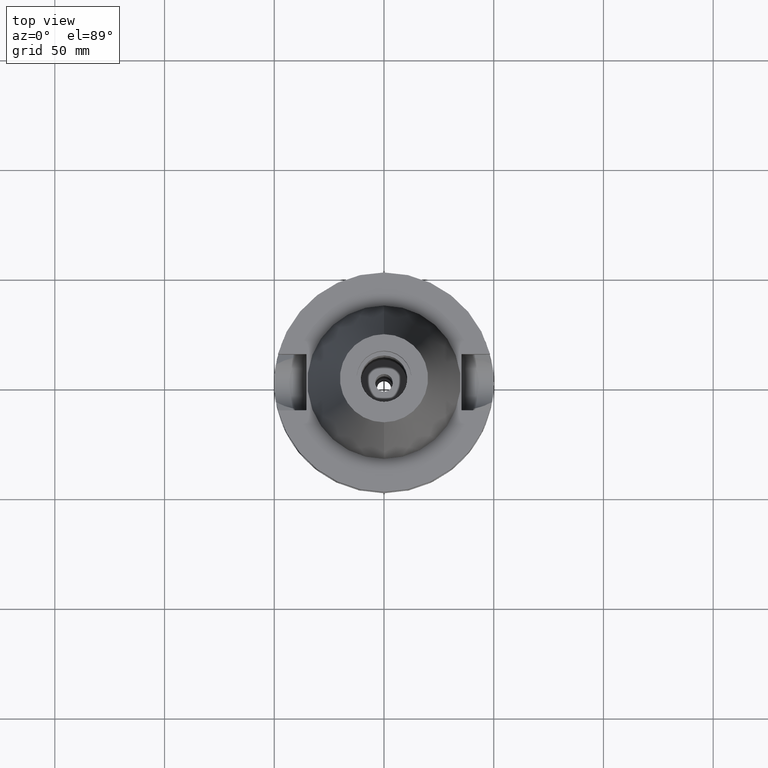
[diagram: clean part render]
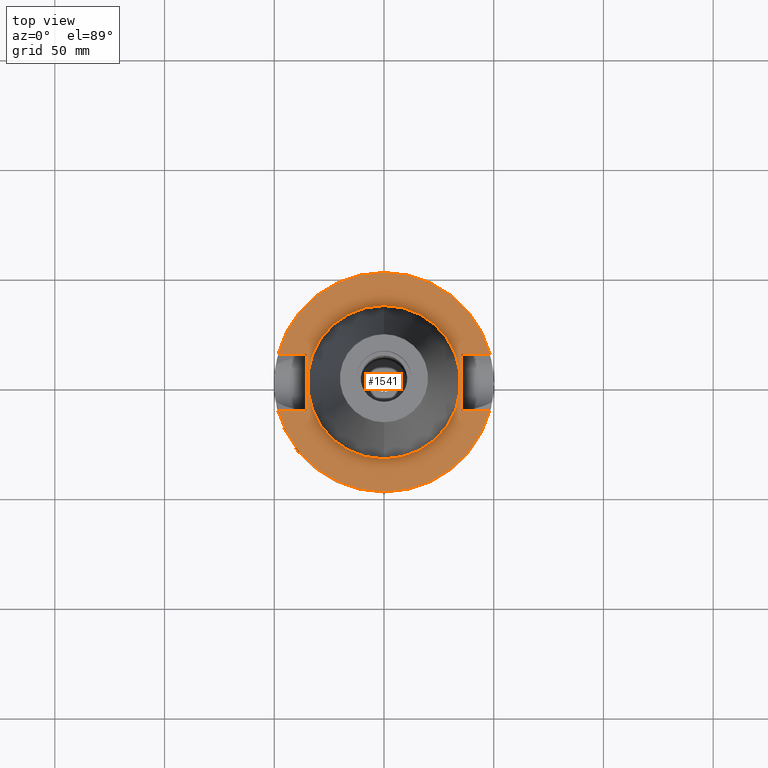
[diagram: same view with one face highlighted and labeled with its STEP entity id]
A machine part, top view. The second image highlights one B-rep face of the part: STEP entity #1541.
In plain terms, the highlighted planar face has unit normal (0, 0, -1).
Its self-contained STEP definition (entity closure, byte-faithful):
#25 = ORIENTED_EDGE ( 'NONE', *, *, #1755, .F. ) ;
#53 = CARTESIAN_POINT ( 'NONE',  ( -35.39999999999999858, -12.84999999999999964, -1.500000000000000000 ) ) ;
#65 = VERTEX_POINT ( 'NONE', #2046 ) ;
#124 = CIRCLE ( 'NONE', #2508, 50.00000000000000000 ) ;
#165 = PLANE ( 'NONE',  #1320 ) ;
#178 = FACE_BOUND ( 'NONE', #1451, .T. ) ;
#192 = CARTESIAN_POINT ( 'NONE',  ( 0.0000000000000000000, 1.206277097159999845E-14, -1.500000000000000000 ) ) ;
#227 = VERTEX_POINT ( 'NONE', #880 ) ;
#228 = DIRECTION ( 'NONE',  ( 0.0000000000000000000, -1.000000000000000000, 0.0000000000000000000 ) ) ;
#251 = ORIENTED_EDGE ( 'NONE', *, *, #391, .F. ) ;
#260 = CARTESIAN_POINT ( 'NONE',  ( 0.0000000000000000000, 34.92499999999999716, -1.500000000000000000 ) ) ;
#295 = VERTEX_POINT ( 'NONE', #2370 ) ;
#391 = EDGE_CURVE ( 'NONE', #572, #65, #2702, .T. ) ;
#393 = CIRCLE ( 'NONE', #3133, 34.92499999999999716 ) ;
#501 = CARTESIAN_POINT ( 'NONE',  ( 0.0000000000000000000, 2.652340037592999854E-14, -1.500000000000000000 ) ) ;
#548 = EDGE_CURVE ( 'NONE', #2709, #227, #2496, .T. ) ;
#572 = VERTEX_POINT ( 'NONE', #2670 ) ;
#596 = AXIS2_PLACEMENT_3D ( 'NONE', #1099, #2095, #2811 ) ;
#633 = VERTEX_POINT ( 'NONE', #260 ) ;
#641 = CARTESIAN_POINT ( 'NONE',  ( -35.39999999999999858, -12.84999999999999964, -1.500000000000000000 ) ) ;
#741 = CARTESIAN_POINT ( 'NONE',  ( 35.39999999999999858, 12.84999999999999964, -1.500000000000000000 ) ) ;
#755 = DIRECTION ( 'NONE',  ( 1.000000000000000000, 0.0000000000000000000, 0.0000000000000000000 ) ) ;
#793 = LINE ( 'NONE', #1489, #2944 ) ;
#808 = VERTEX_POINT ( 'NONE', #641 ) ;
#815 = ORIENTED_EDGE ( 'NONE', *, *, #2743, .F. ) ;
#833 = ORIENTED_EDGE ( 'NONE', *, *, #981, .F. ) ;
#865 = VECTOR ( 'NONE', #1036, 1000.000000000000000 ) ;
#871 = VECTOR ( 'NONE', #967, 1000.000000000000000 ) ;
#880 = CARTESIAN_POINT ( 'NONE',  ( 48.32057015392000210, 12.84999999999999964, -1.500000000000000000 ) ) ;
#920 = VERTEX_POINT ( 'NONE', #2355 ) ;
#967 = DIRECTION ( 'NONE',  ( -1.000000000000000000, 0.0000000000000000000, 0.0000000000000000000 ) ) ;
#981 = EDGE_CURVE ( 'NONE', #2709, #295, #2383, .T. ) ;
#983 = CARTESIAN_POINT ( 'NONE',  ( -35.39999999999999858, 12.84999999999999964, -1.500000000000000000 ) ) ;
#997 = DIRECTION ( 'NONE',  ( 1.000000000000000000, 0.0000000000000000000, 0.0000000000000000000 ) ) ;
#1006 = VERTEX_POINT ( 'NONE', #1423 ) ;
#1031 = EDGE_CURVE ( 'NONE', #295, #1432, #793, .T. ) ;
#1036 = DIRECTION ( 'NONE',  ( -1.000000000000000000, 0.0000000000000000000, 0.0000000000000000000 ) ) ;
#1099 = CARTESIAN_POINT ( 'NONE',  ( 0.0000000000000000000, 2.652340037592999854E-14, -1.500000000000000000 ) ) ;
#1134 = EDGE_CURVE ( 'NONE', #808, #920, #2279, .T. ) ;
#1161 = CARTESIAN_POINT ( 'NONE',  ( 35.39999999999999858, 12.84999999999999964, -1.500000000000000000 ) ) ;
#1235 = DIRECTION ( 'NONE',  ( 0.0000000000000000000, 1.000000000000000000, 0.0000000000000000000 ) ) ;
#1241 = CARTESIAN_POINT ( 'NONE',  ( 35.39999999999999858, 12.84999999999999964, -1.500000000000000000 ) ) ;
#1320 = AXIS2_PLACEMENT_3D ( 'NONE', #192, #2644, #228 ) ;
#1400 = ORIENTED_EDGE ( 'NONE', *, *, #2855, .F. ) ;
#1423 = CARTESIAN_POINT ( 'NONE',  ( 0.0000000000000000000, -34.92499999999999716, -1.500000000000000000 ) ) ;
#1432 = VERTEX_POINT ( 'NONE', #1675 ) ;
#1451 = EDGE_LOOP ( 'NONE', ( #2220, #25 ) ) ;
#1489 = CARTESIAN_POINT ( 'NONE',  ( 35.39999999999999858, -12.84999999999999964, -1.500000000000000000 ) ) ;
#1501 = ORIENTED_EDGE ( 'NONE', *, *, #1134, .T. ) ;
#1541 = ADVANCED_FACE ( 'NONE', ( #2453, #178 ), #165, .F. ) ;
#1543 = DIRECTION ( 'NONE',  ( 0.0000000000000000000, 1.000000000000000000, 0.0000000000000000000 ) ) ;
#1623 = DIRECTION ( 'NONE',  ( 0.0000000000000000000, -1.000000000000000000, 0.0000000000000000000 ) ) ;
#1657 = EDGE_CURVE ( 'NONE', #633, #1006, #393, .T. ) ;
#1675 = CARTESIAN_POINT ( 'NONE',  ( 48.32057015392000210, -12.84999999999999964, -1.500000000000000000 ) ) ;
#1706 = ORIENTED_EDGE ( 'NONE', *, *, #1031, .F. ) ;
#1755 = EDGE_CURVE ( 'NONE', #1006, #633, #2471, .T. ) ;
#1785 = DIRECTION ( 'NONE',  ( 0.0000000000000000000, 0.0000000000000000000, 1.000000000000000000 ) ) ;
#1858 = DIRECTION ( 'NONE',  ( 0.0000000000000000000, -1.000000000000000000, 0.0000000000000000000 ) ) ;
#1863 = VECTOR ( 'NONE', #1623, 1000.000000000000000 ) ;
#1939 = AXIS2_PLACEMENT_3D ( 'NONE', #3075, #2805, #1858 ) ;
#1940 = ORIENTED_EDGE ( 'NONE', *, *, #2622, .F. ) ;
#2046 = CARTESIAN_POINT ( 'NONE',  ( -48.32057015392000210, 12.84999999999999964, -1.500000000000000000 ) ) ;
#2095 = DIRECTION ( 'NONE',  ( 0.0000000000000000000, 0.0000000000000000000, 1.000000000000000000 ) ) ;
#2220 = ORIENTED_EDGE ( 'NONE', *, *, #1657, .F. ) ;
#2276 = EDGE_LOOP ( 'NONE', ( #1501, #1400, #1706, #833, #2457, #815, #251, #1940 ) ) ;
#2279 = LINE ( 'NONE', #53, #865 ) ;
#2342 = VECTOR ( 'NONE', #2475, 1000.000000000000000 ) ;
#2355 = CARTESIAN_POINT ( 'NONE',  ( -48.32057015392000210, -12.84999999999999964, -1.500000000000000000 ) ) ;
#2370 = CARTESIAN_POINT ( 'NONE',  ( 35.39999999999999858, -12.84999999999999964, -1.500000000000000000 ) ) ;
#2383 = LINE ( 'NONE', #1161, #1863 ) ;
#2453 = FACE_OUTER_BOUND ( 'NONE', #2276, .T. ) ;
#2457 = ORIENTED_EDGE ( 'NONE', *, *, #548, .T. ) ;
#2459 = CARTESIAN_POINT ( 'NONE',  ( -35.39999999999999858, -12.84999999999999964, -1.500000000000000000 ) ) ;
#2471 = CIRCLE ( 'NONE', #596, 34.92499999999999716 ) ;
#2475 = DIRECTION ( 'NONE',  ( 0.0000000000000000000, 1.000000000000000000, 0.0000000000000000000 ) ) ;
#2496 = LINE ( 'NONE', #1241, #2892 ) ;
#2501 = CARTESIAN_POINT ( 'NONE',  ( 0.0000000000000000000, 2.652340037592999854E-14, -1.500000000000000000 ) ) ;
#2508 = AXIS2_PLACEMENT_3D ( 'NONE', #501, #2520, #1235 ) ;
#2520 = DIRECTION ( 'NONE',  ( 0.0000000000000000000, 0.0000000000000000000, -1.000000000000000000 ) ) ;
#2622 = EDGE_CURVE ( 'NONE', #808, #572, #3014, .T. ) ;
#2644 = DIRECTION ( 'NONE',  ( 0.0000000000000000000, 0.0000000000000000000, -1.000000000000000000 ) ) ;
#2670 = CARTESIAN_POINT ( 'NONE',  ( -35.39999999999999858, 12.84999999999999964, -1.500000000000000000 ) ) ;
#2702 = LINE ( 'NONE', #983, #871 ) ;
#2709 = VERTEX_POINT ( 'NONE', #741 ) ;
#2743 = EDGE_CURVE ( 'NONE', #65, #227, #124, .T. ) ;
#2805 = DIRECTION ( 'NONE',  ( 0.0000000000000000000, 0.0000000000000000000, -1.000000000000000000 ) ) ;
#2811 = DIRECTION ( 'NONE',  ( 0.0000000000000000000, -1.000000000000000000, 0.0000000000000000000 ) ) ;
#2855 = EDGE_CURVE ( 'NONE', #1432, #920, #2911, .T. ) ;
#2892 = VECTOR ( 'NONE', #997, 1000.000000000000000 ) ;
#2911 = CIRCLE ( 'NONE', #1939, 50.00000000000000000 ) ;
#2944 = VECTOR ( 'NONE', #755, 1000.000000000000000 ) ;
#3014 = LINE ( 'NONE', #2459, #2342 ) ;
#3075 = CARTESIAN_POINT ( 'NONE',  ( 0.0000000000000000000, 2.652340037592999854E-14, -1.500000000000000000 ) ) ;
#3133 = AXIS2_PLACEMENT_3D ( 'NONE', #2501, #1785, #1543 ) ;